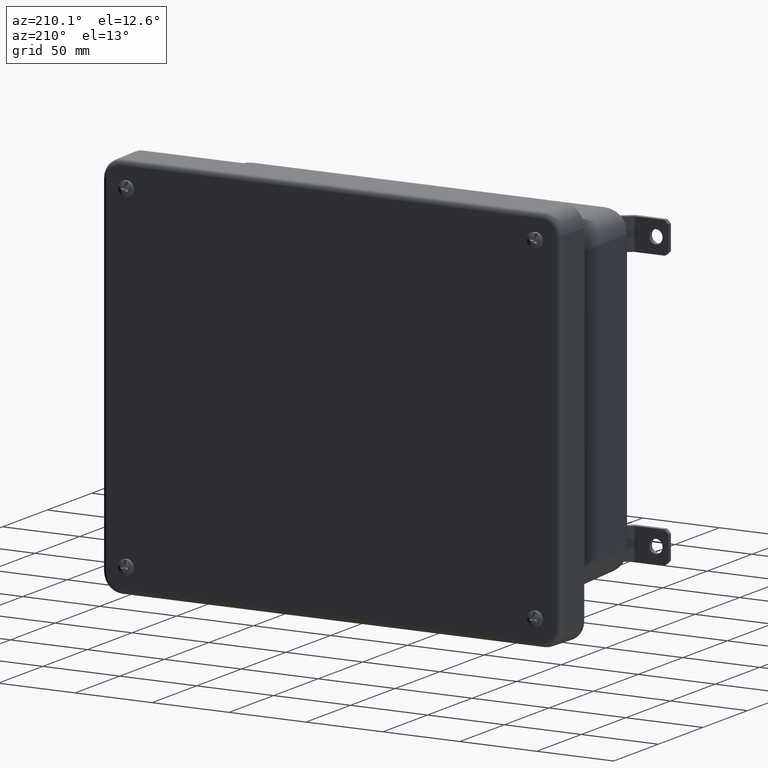
[diagram: clean part render]
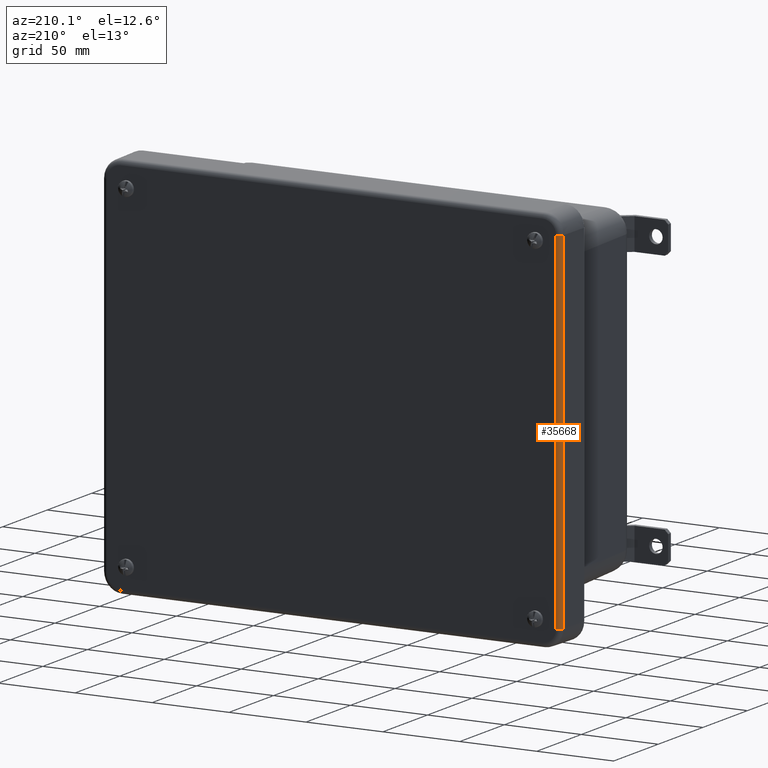
[diagram: same view with one face highlighted and labeled with its STEP entity id]
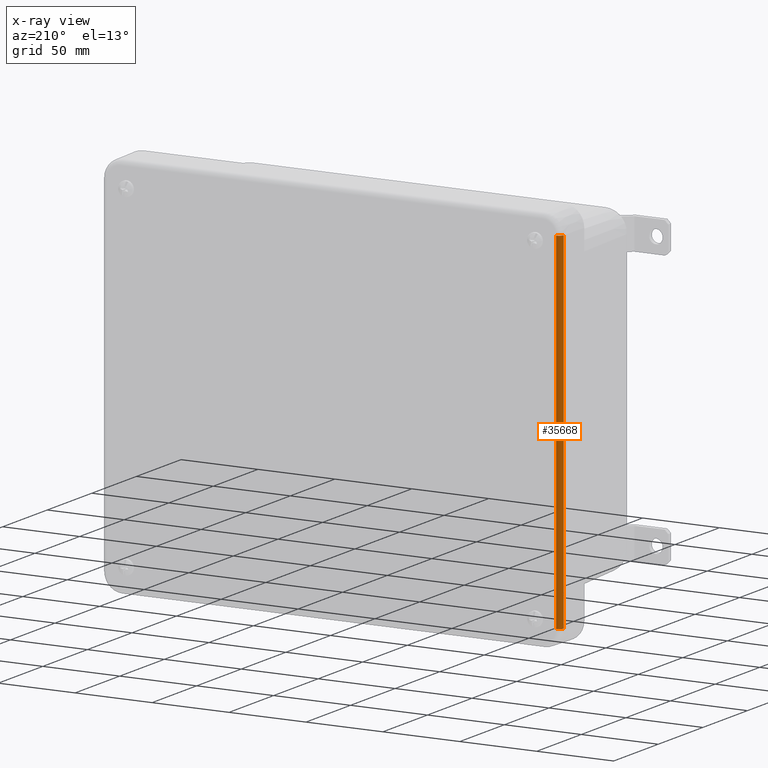
[diagram: x-ray of the same camera — body ghosted, the highlighted face saturated]
A machine part, auxiliary view. The second image highlights one B-rep face of the part: STEP entity #35668.
The next image is the same camera in x-ray: the body ghosted, the highlighted face saturated — about 0% of this face is hidden behind the body in this view.
In plain terms, the highlighted cylindrical surface (edge-blend (fillet) strip) has radius 3.175 mm, axis along (0, 0, -1).
Its self-contained STEP definition (entity closure, byte-faithful):
#2018 = DIRECTION ( 'NONE',  ( -1.000000000000000000, 0.0000000000000000000, 0.0000000000000000000 ) ) ;
#2926 = EDGE_CURVE ( 'NONE', #11961, #28233, #27320, .T. ) ;
#3064 = EDGE_LOOP ( 'NONE', ( #13147, #32261, #21071, #40567 ) ) ;
#3330 = CARTESIAN_POINT ( 'NONE',  ( 5.746162842110538600, 0.1249999999999999000, -4.462000000000000600 ) ) ;
#7480 = CIRCLE ( 'NONE', #36680, 0.1250000000000004400 ) ;
#9463 = CARTESIAN_POINT ( 'NONE',  ( 5.871143804005088300, 0.1228184491953397700, 4.462000000000000600 ) ) ;
#9845 = EDGE_CURVE ( 'NONE', #20185, #10138, #33514, .T. ) ;
#10138 = VERTEX_POINT ( 'NONE', #22907 ) ;
#11320 = CARTESIAN_POINT ( 'NONE',  ( 5.746162842110540400, 0.1249999999999999000, 4.462000000000000600 ) ) ;
#11961 = VERTEX_POINT ( 'NONE', #30455 ) ;
#13138 = CARTESIAN_POINT ( 'NONE',  ( 5.746162842110538600, 0.0000000000000000000, 4.462000000000000600 ) ) ;
#13147 = ORIENTED_EDGE ( 'NONE', *, *, #31418, .T. ) ;
#14462 = AXIS2_PLACEMENT_3D ( 'NONE', #40513, #21230, #2018 ) ;
#14539 = DIRECTION ( 'NONE',  ( -1.000000000000000000, 0.0000000000000000000, 0.0000000000000000000 ) ) ;
#14815 = DIRECTION ( 'NONE',  ( 0.0000000000000000000, 0.0000000000000000000, -1.000000000000000000 ) ) ;
#18797 = VECTOR ( 'NONE', #26029, 39.37007874015748100 ) ;
#19009 = CIRCLE ( 'NONE', #14462, 0.1250000000000004400 ) ;
#20185 = VERTEX_POINT ( 'NONE', #9463 ) ;
#21071 = ORIENTED_EDGE ( 'NONE', *, *, #36353, .F. ) ;
#21230 = DIRECTION ( 'NONE',  ( 0.0000000000000000000, 0.0000000000000000000, -1.000000000000000000 ) ) ;
#22907 = CARTESIAN_POINT ( 'NONE',  ( 5.871143804005088300, 0.1228184491953397700, -4.462000000000000600 ) ) ;
#24551 = CYLINDRICAL_SURFACE ( 'NONE', #27614, 0.1250000000000004400 ) ;
#25777 = DIRECTION ( 'NONE',  ( -1.000000000000000000, 0.0000000000000000000, 0.0000000000000000000 ) ) ;
#26012 = VECTOR ( 'NONE', #14815, 39.37007874015748100 ) ;
#26029 = DIRECTION ( 'NONE',  ( 0.0000000000000000000, 0.0000000000000000000, 1.000000000000000000 ) ) ;
#26568 = FACE_OUTER_BOUND ( 'NONE', #3064, .T. ) ;
#27320 = LINE ( 'NONE', #13138, #18797 ) ;
#27614 = AXIS2_PLACEMENT_3D ( 'NONE', #3330, #35313, #25777 ) ;
#28233 = VERTEX_POINT ( 'NONE', #40547 ) ;
#30455 = CARTESIAN_POINT ( 'NONE',  ( 5.746162842110538600, 0.0000000000000000000, -4.462000000000000600 ) ) ;
#31418 = EDGE_CURVE ( 'NONE', #20185, #28233, #7480, .T. ) ;
#32261 = ORIENTED_EDGE ( 'NONE', *, *, #2926, .F. ) ;
#33514 = LINE ( 'NONE', #33719, #26012 ) ;
#33715 = DIRECTION ( 'NONE',  ( 0.0000000000000000000, 0.0000000000000000000, -1.000000000000000000 ) ) ;
#33719 = CARTESIAN_POINT ( 'NONE',  ( 5.871143804005088300, 0.1228184491953397700, -4.462000000000000600 ) ) ;
#35313 = DIRECTION ( 'NONE',  ( 0.0000000000000000000, 0.0000000000000000000, -1.000000000000000000 ) ) ;
#35668 = ADVANCED_FACE ( 'NONE', ( #26568 ), #24551, .T. ) ;
#36353 = EDGE_CURVE ( 'NONE', #10138, #11961, #19009, .T. ) ;
#36680 = AXIS2_PLACEMENT_3D ( 'NONE', #11320, #33715, #14539 ) ;
#40513 = CARTESIAN_POINT ( 'NONE',  ( 5.746162842110538600, 0.1249999999999999000, -4.462000000000000600 ) ) ;
#40547 = CARTESIAN_POINT ( 'NONE',  ( 5.746162842110540400, 0.0000000000000000000, 4.462000000000000600 ) ) ;
#40567 = ORIENTED_EDGE ( 'NONE', *, *, #9845, .F. ) ;